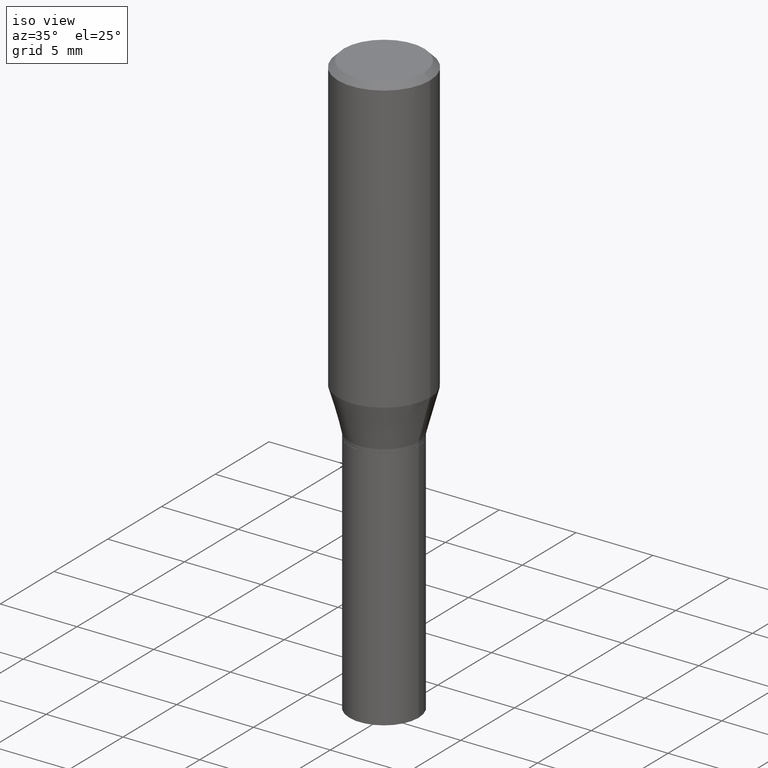
[diagram: clean part render]
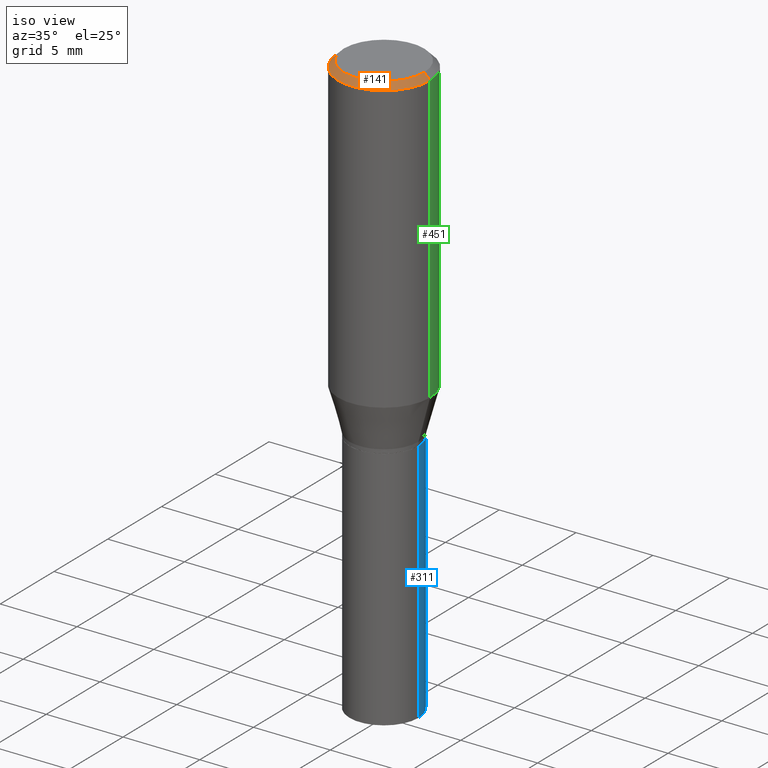
[diagram: same view with three faces highlighted in distinct colors, each labeled with its STEP entity id]
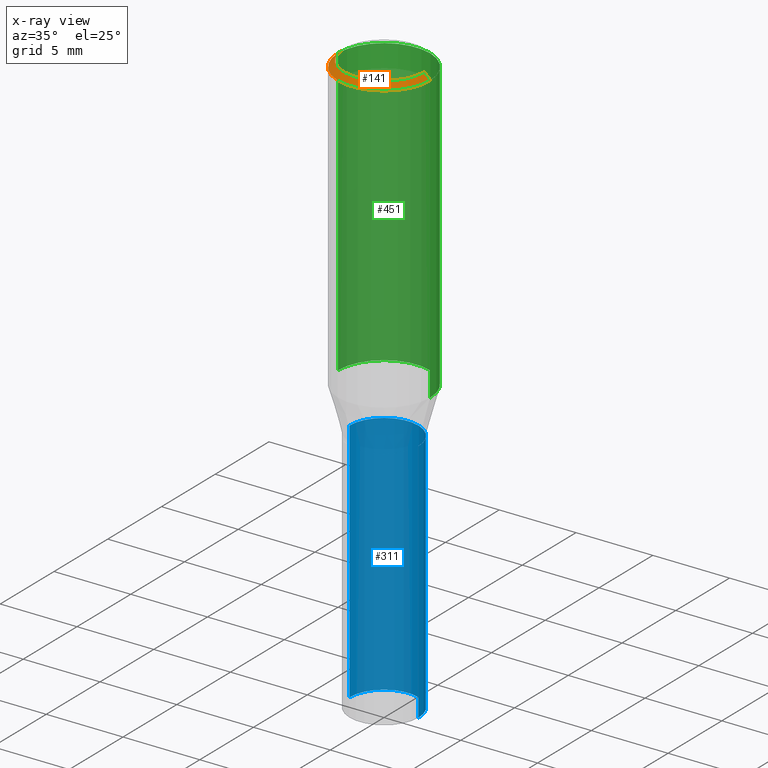
[diagram: x-ray of the same camera — body ghosted, the three highlighted faces saturated]
A machine part, iso view with three faces highlighted in distinct colors.
The next image is the same camera in x-ray (body ghosted, the three faces saturated) — at least one of them is partly hidden behind the body in this view.
Their STEP definitions:

[orange] entity #141 — the highlighted conical surface has half-angle 45 deg.
#11 = AXIS2_PLACEMENT_3D ( 'NONE', #133, #413, #276 ) ;
#12 = DIRECTION ( 'NONE',  ( 1.000000000000000000, -6.982962677686266711E-15, 0.000000000000000000 ) ) ;
#17 = CARTESIAN_POINT ( 'NONE',  ( 3.668203209277705088E-31, -5.237222008264718399E-17, -0.01499999999999999944 ) ) ;
#20 = VECTOR ( 'NONE', #252, 39.37007874015748854 ) ;
#32 = ORIENTED_EDGE ( 'NONE', *, *, #309, .T. ) ;
#36 = DIRECTION ( 'NONE',  ( -0.7071067811865516806, 2.468850131082300842E-15, -0.7071067811865431318 ) ) ;
#44 = EDGE_CURVE ( 'NONE', #155, #72, #95, .T. ) ;
#64 = FACE_OUTER_BOUND ( 'NONE', #193, .T. ) ;
#72 = VERTEX_POINT ( 'NONE', #83 ) ;
#73 = CARTESIAN_POINT ( 'NONE',  ( -0.1031000000000000111, 7.461295621107772493E-16, -1.900413116462341961E-16 ) ) ;
#75 = CARTESIAN_POINT ( 'NONE',  ( -0.1180999999999999966, 7.723156721521009862E-16, -0.01499999999999999944 ) ) ;
#77 = EDGE_CURVE ( 'NONE', #399, #261, #158, .T. ) ;
#78 = AXIS2_PLACEMENT_3D ( 'NONE', #231, #122, #380 ) ;
#83 = CARTESIAN_POINT ( 'NONE',  ( 0.1180999999999999966, -8.770601123173952432E-16, -0.01499999999999999944 ) ) ;
#95 = CIRCLE ( 'NONE', #343, 0.1180999999999999966 ) ;
#103 = CARTESIAN_POINT ( 'NONE',  ( 0.1180999999999999966, -8.625970336194650129E-16, -0.01499999999999999944 ) ) ;
#122 = DIRECTION ( 'NONE',  ( -2.445468806185136597E-29, 3.491481338843145583E-15, 1.000000000000000000 ) ) ;
#133 = CARTESIAN_POINT ( 'NONE',  ( 3.668203209277705088E-31, -5.237222008264718399E-17, -0.01499999999999999944 ) ) ;
#141 = ADVANCED_FACE ( 'NONE', ( #64 ), #324, .T. ) ;
#155 = VERTEX_POINT ( 'NONE', #387 ) ;
#158 = CIRCLE ( 'NONE', #78, 0.1031000000000000111 ) ;
#166 = DIRECTION ( 'NONE',  ( -2.445468806185136597E-29, 3.491481338843145583E-15, 1.000000000000000000 ) ) ;
#193 = EDGE_LOOP ( 'NONE', ( #226, #425, #32, #407 ) ) ;
#226 = ORIENTED_EDGE ( 'NONE', *, *, #423, .F. ) ;
#231 = CARTESIAN_POINT ( 'NONE',  ( 4.647400995173613138E-45, -6.635256932220833331E-31, -1.900413116462290932E-16 ) ) ;
#252 = DIRECTION ( 'NONE',  ( 0.7071067811865516806, -7.319954787623268667E-15, -0.7071067811865431318 ) ) ;
#261 = VERTEX_POINT ( 'NONE', #351 ) ;
#276 = DIRECTION ( 'NONE',  ( -1.000000000000000000, 6.982962677686266711E-15, 0.000000000000000000 ) ) ;
#309 = EDGE_CURVE ( 'NONE', #399, #155, #390, .T. ) ;
#316 = LINE ( 'NONE', #103, #20 ) ;
#324 = CONICAL_SURFACE ( 'NONE', #11, 0.1180999999999999966, 0.7853981633974543852 ) ;
#343 = AXIS2_PLACEMENT_3D ( 'NONE', #17, #166, #12 ) ;
#351 = CARTESIAN_POINT ( 'NONE',  ( 0.1031000000000000111, -7.849571885948552706E-16, -1.900413116462238423E-16 ) ) ;
#380 = DIRECTION ( 'NONE',  ( 1.000000000000000000, -6.982962677686265922E-15, 4.883331232093008327E-29 ) ) ;
#387 = CARTESIAN_POINT ( 'NONE',  ( -0.1180999999999999966, -4.963484990620821929E-16, -0.01499999999999999944 ) ) ;
#390 = LINE ( 'NONE', #75, #458 ) ;
#399 = VERTEX_POINT ( 'NONE', #73 ) ;
#407 = ORIENTED_EDGE ( 'NONE', *, *, #44, .T. ) ;
#413 = DIRECTION ( 'NONE',  ( 2.445468806185136597E-29, -3.491481338843145583E-15, -1.000000000000000000 ) ) ;
#423 = EDGE_CURVE ( 'NONE', #261, #72, #316, .T. ) ;
#425 = ORIENTED_EDGE ( 'NONE', *, *, #77, .F. ) ;
#458 = VECTOR ( 'NONE', #36, 39.37007874015748854 ) ;

[blue] entity #311 — the highlighted cylindrical surface (partial cylindrical patch) has radius 2.2504 mm, axis along (-0, 0, 1).
#2 = FACE_OUTER_BOUND ( 'NONE', #184, .T. ) ;
#14 = EDGE_CURVE ( 'NONE', #461, #320, #445, .T. ) ;
#15 = CARTESIAN_POINT ( 'NONE',  ( 0.08859999999999999820, -6.186904932430032487E-16, 4.320292623355198765E-30 ) ) ;
#38 = CARTESIAN_POINT ( 'NONE',  ( 2.127802408261687534E-29, -3.037937912927421601E-15, -0.8701000000000000956 ) ) ;
#41 = DIRECTION ( 'NONE',  ( 1.000000000000000000, -6.982962677686266711E-15, 4.876176775795935232E-29 ) ) ;
#50 = CIRCLE ( 'NONE', #393, 0.08859999999999999820 ) ;
#52 = DIRECTION ( 'NONE',  ( -2.445468806185136877E-29, 3.491481338843145188E-15, 1.000000000000000000 ) ) ;
#61 = AXIS2_PLACEMENT_3D ( 'NONE', #353, #422, #41 ) ;
#65 = DIRECTION ( 'NONE',  ( 1.000000000000000000, -6.982962677686263555E-15, 0.000000000000000000 ) ) ;
#92 = EDGE_CURVE ( 'NONE', #264, #355, #279, .T. ) ;
#99 = CARTESIAN_POINT ( 'NONE',  ( -0.08859999999999999820, 6.295408638834487519E-16, -4.358176489965846267E-30 ) ) ;
#105 = CARTESIAN_POINT ( 'NONE',  ( -0.08859999999999999820, -3.508039096712621630E-15, -0.8701000000000000956 ) ) ;
#142 = CARTESIAN_POINT ( 'NONE',  ( -0.08859999999999999820, -3.508039096712621630E-15, -1.500000000000000222 ) ) ;
#146 = ORIENTED_EDGE ( 'NONE', *, *, #92, .T. ) ;
#151 = DIRECTION ( 'NONE',  ( -2.445468806185136597E-29, 3.491481338843145583E-15, 1.000000000000000000 ) ) ;
#184 = EDGE_LOOP ( 'NONE', ( #325, #146, #434, #223 ) ) ;
#223 = ORIENTED_EDGE ( 'NONE', *, *, #14, .F. ) ;
#245 = DIRECTION ( 'NONE',  ( -2.445468806185136597E-29, 3.491481338843145583E-15, 1.000000000000000000 ) ) ;
#250 = EDGE_CURVE ( 'NONE', #461, #264, #50, .T. ) ;
#264 = VERTEX_POINT ( 'NONE', #142 ) ;
#279 = LINE ( 'NONE', #99, #400 ) ;
#283 = CARTESIAN_POINT ( 'NONE',  ( 0.08859999999999999820, -3.656628406170424159E-15, -0.8701000000000000956 ) ) ;
#311 = ADVANCED_FACE ( 'NONE', ( #2 ), #360, .T. ) ;
#313 = CARTESIAN_POINT ( 'NONE',  ( 3.668203209277704895E-29, -5.237222008264718177E-15, -1.500000000000000222 ) ) ;
#320 = VERTEX_POINT ( 'NONE', #283 ) ;
#325 = ORIENTED_EDGE ( 'NONE', *, *, #250, .T. ) ;
#326 = CIRCLE ( 'NONE', #421, 0.08859999999999999820 ) ;
#353 = CARTESIAN_POINT ( 'NONE',  ( 0.000000000000000000, 0.000000000000000000, 0.000000000000000000 ) ) ;
#355 = VERTEX_POINT ( 'NONE', #105 ) ;
#360 = CYLINDRICAL_SURFACE ( 'NONE', #61, 0.08859999999999999820 ) ;
#366 = VECTOR ( 'NONE', #52, 39.37007874015748143 ) ;
#371 = CARTESIAN_POINT ( 'NONE',  ( 0.08859999999999999820, -5.855912501507721918E-15, -1.500000000000000222 ) ) ;
#381 = EDGE_CURVE ( 'NONE', #320, #355, #326, .T. ) ;
#384 = DIRECTION ( 'NONE',  ( -2.445468806185136877E-29, 3.491481338843145188E-15, 1.000000000000000000 ) ) ;
#393 = AXIS2_PLACEMENT_3D ( 'NONE', #313, #245, #419 ) ;
#400 = VECTOR ( 'NONE', #384, 39.37007874015748143 ) ;
#419 = DIRECTION ( 'NONE',  ( 1.000000000000000000, -6.982962677686269077E-15, 0.000000000000000000 ) ) ;
#421 = AXIS2_PLACEMENT_3D ( 'NONE', #38, #151, #65 ) ;
#422 = DIRECTION ( 'NONE',  ( -2.445468806185136597E-29, 3.491481338843145583E-15, 1.000000000000000000 ) ) ;
#434 = ORIENTED_EDGE ( 'NONE', *, *, #381, .F. ) ;
#445 = LINE ( 'NONE', #15, #366 ) ;
#461 = VERTEX_POINT ( 'NONE', #371 ) ;

[green] entity #451 — the highlighted cylindrical surface (partial cylindrical patch) has radius 2.9997 mm, axis along (-0, 0, 1).
#4 = VERTEX_POINT ( 'NONE', #367 ) ;
#39 = VECTOR ( 'NONE', #175, 39.37007874015748143 ) ;
#45 = FACE_OUTER_BOUND ( 'NONE', #114, .T. ) ;
#46 = CARTESIAN_POINT ( 'NONE',  ( -0.1180999999999999966, 8.391509709326782957E-16, -5.809262341591043784E-30 ) ) ;
#48 = ORIENTED_EDGE ( 'NONE', *, *, #144, .F. ) ;
#53 = DIRECTION ( 'NONE',  ( 1.000000000000000000, -6.982962677686266711E-15, 4.876176775795936353E-29 ) ) ;
#72 = VERTEX_POINT ( 'NONE', #83 ) ;
#74 = VERTEX_POINT ( 'NONE', #80 ) ;
#80 = CARTESIAN_POINT ( 'NONE',  ( 0.1180999999999999966, -3.443314612141622358E-15, -0.7500045011767182412 ) ) ;
#81 = ORIENTED_EDGE ( 'NONE', *, *, #120, .T. ) ;
#83 = CARTESIAN_POINT ( 'NONE',  ( 0.1180999999999999966, -8.770601123173952432E-16, -0.01499999999999999944 ) ) ;
#84 = EDGE_CURVE ( 'NONE', #4, #155, #203, .T. ) ;
#100 = CARTESIAN_POINT ( 'NONE',  ( 3.668203209277705088E-31, -5.237222008264718399E-17, -0.01499999999999999944 ) ) ;
#107 = CIRCLE ( 'NONE', #427, 0.1180999999999999966 ) ;
#114 = EDGE_LOOP ( 'NONE', ( #81, #395, #329, #48 ) ) ;
#120 = EDGE_CURVE ( 'NONE', #74, #4, #168, .T. ) ;
#130 = EDGE_CURVE ( 'NONE', #72, #155, #107, .T. ) ;
#132 = DIRECTION ( 'NONE',  ( 1.000000000000000000, -6.982962677686266711E-15, 0.000000000000000000 ) ) ;
#144 = EDGE_CURVE ( 'NONE', #74, #72, #171, .T. ) ;
#155 = VERTEX_POINT ( 'NONE', #387 ) ;
#157 = AXIS2_PLACEMENT_3D ( 'NONE', #450, #205, #206 ) ;
#159 = DIRECTION ( 'NONE',  ( -2.445468806185136597E-29, 3.491481338843145583E-15, 1.000000000000000000 ) ) ;
#168 = CIRCLE ( 'NONE', #157, 0.1180999999999999966 ) ;
#171 = LINE ( 'NONE', #352, #39 ) ;
#175 = DIRECTION ( 'NONE',  ( -2.445468806185136877E-29, 3.491481338843145188E-15, 1.000000000000000000 ) ) ;
#181 = DIRECTION ( 'NONE',  ( -2.445468806185136597E-29, 3.491481338843145583E-15, 1.000000000000000000 ) ) ;
#203 = LINE ( 'NONE', #46, #446 ) ;
#205 = DIRECTION ( 'NONE',  ( -2.445468806185136597E-29, 3.491481338843145583E-15, 1.000000000000000000 ) ) ;
#206 = DIRECTION ( 'NONE',  ( 1.000000000000000000, -6.982962677686265133E-15, 0.000000000000000000 ) ) ;
#270 = AXIS2_PLACEMENT_3D ( 'NONE', #271, #159, #53 ) ;
#271 = CARTESIAN_POINT ( 'NONE',  ( 0.000000000000000000, 0.000000000000000000, 0.000000000000000000 ) ) ;
#329 = ORIENTED_EDGE ( 'NONE', *, *, #130, .F. ) ;
#352 = CARTESIAN_POINT ( 'NONE',  ( 0.1180999999999999966, -8.246878922347480654E-16, 5.758764772215000440E-30 ) ) ;
#367 = CARTESIAN_POINT ( 'NONE',  ( -0.1180999999999999966, -1.779475748974195504E-15, -0.7500045011767182412 ) ) ;
#387 = CARTESIAN_POINT ( 'NONE',  ( -0.1180999999999999966, -4.963484990620821929E-16, -0.01499999999999999944 ) ) ;
#395 = ORIENTED_EDGE ( 'NONE', *, *, #84, .T. ) ;
#405 = DIRECTION ( 'NONE',  ( -2.445468806185136877E-29, 3.491481338843145188E-15, 1.000000000000000000 ) ) ;
#406 = CYLINDRICAL_SURFACE ( 'NONE', #270, 0.1180999999999999966 ) ;
#427 = AXIS2_PLACEMENT_3D ( 'NONE', #100, #181, #132 ) ;
#446 = VECTOR ( 'NONE', #405, 39.37007874015748143 ) ;
#450 = CARTESIAN_POINT ( 'NONE',  ( 1.834112612126108016E-29, -2.618626719906874095E-15, -0.7500045011767182412 ) ) ;
#451 = ADVANCED_FACE ( 'NONE', ( #45 ), #406, .T. ) ;